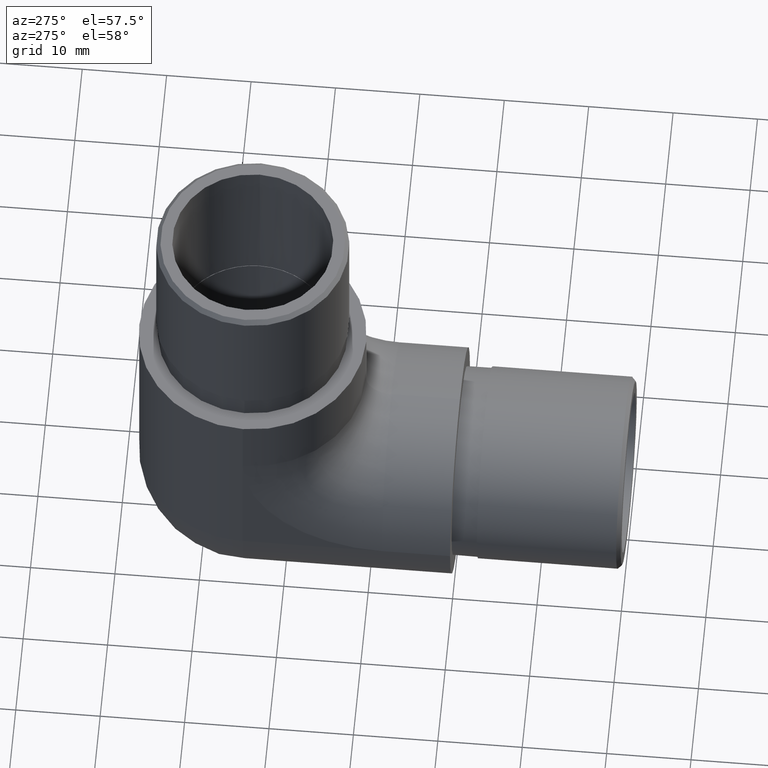
[diagram: clean part render]
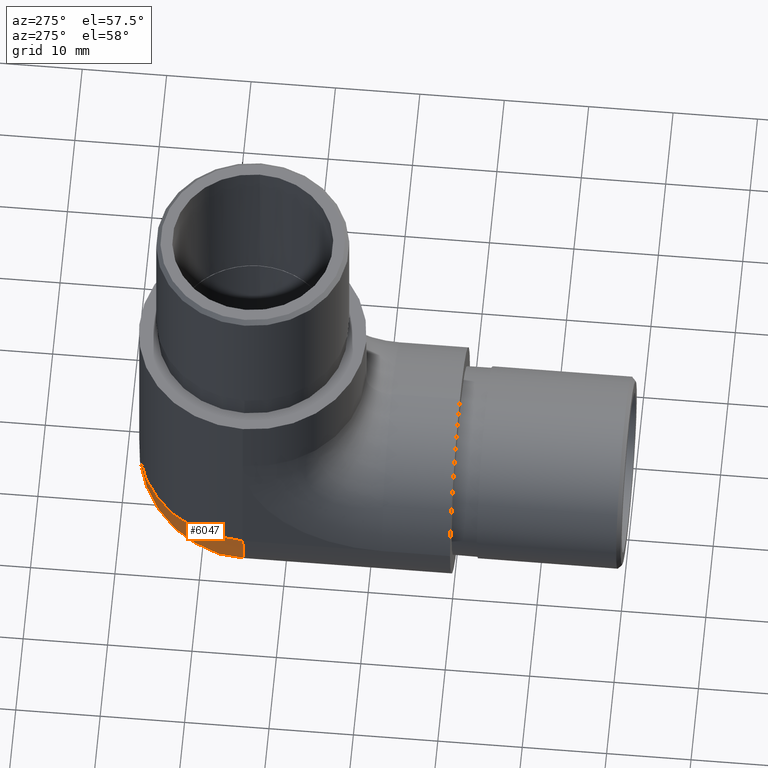
[diagram: same view with one face highlighted and labeled with its STEP entity id]
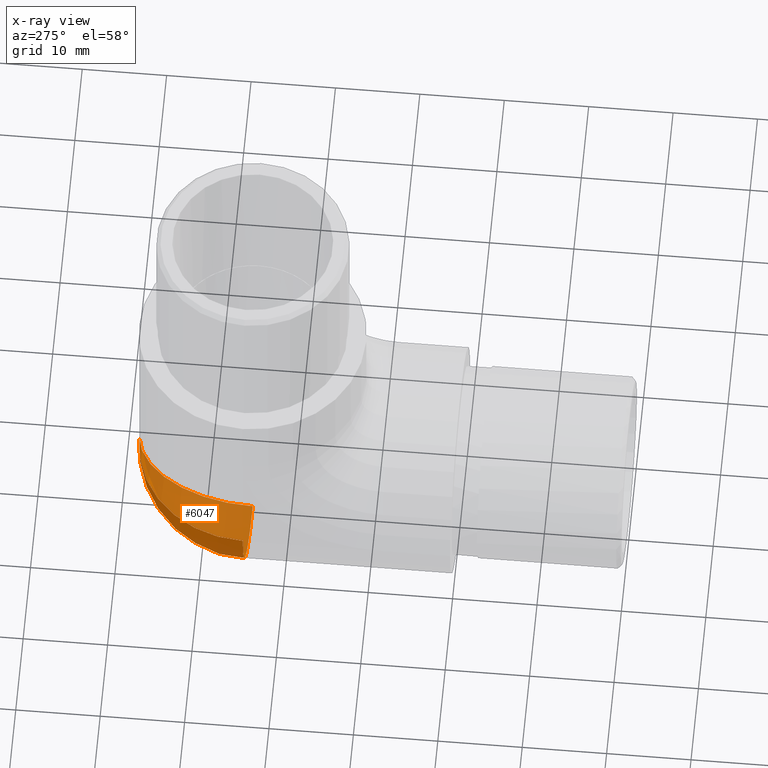
[diagram: x-ray of the same camera — body ghosted, the highlighted face saturated]
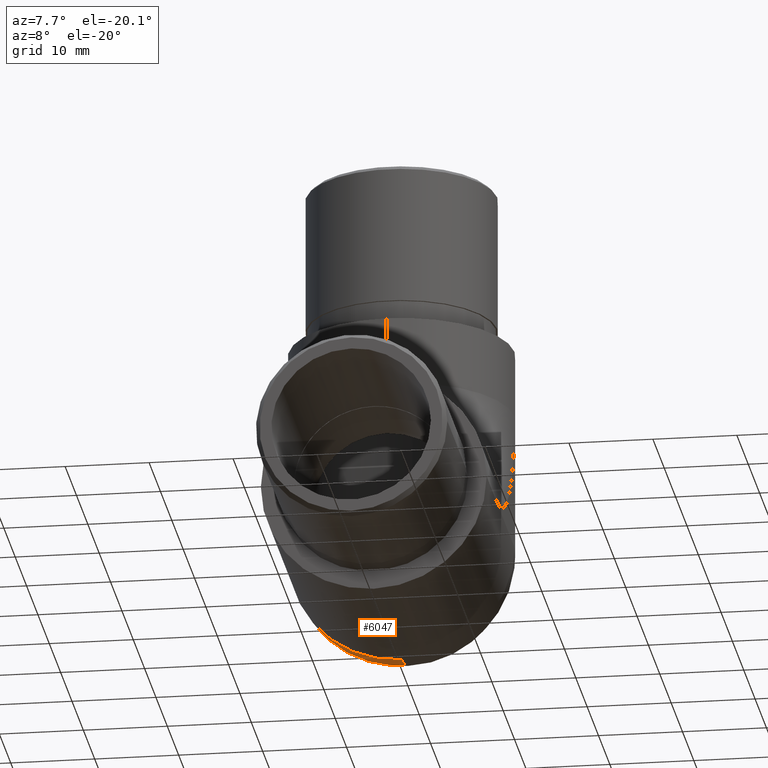
[diagram: same view with one face highlighted and labeled with its STEP entity id]
A machine part, auxiliary view. The second image highlights one B-rep face of the part: STEP entity #6047.
The next image is the same camera in x-ray: the body ghosted, the highlighted face saturated — about 68% of this face is hidden behind the body in this view.
A second angle (auxiliary view) of the same face is appended — the face is thin or edge-on in the first view.
In plain terms, the highlighted spherical surface has radius 13.45 mm.
Its self-contained STEP definition (entity closure, byte-faithful):
#429 = FACE_OUTER_BOUND ( 'NONE', #11488, .T. ) ;
#1720 = ORIENTED_EDGE ( 'NONE', *, *, #11325, .F. ) ;
#1789 = SPHERICAL_SURFACE ( 'NONE', #4301, 13.44999999999999900 ) ;
#2752 = CARTESIAN_POINT ( 'NONE',  ( -1.734723475976806900E-015, 38.00000000000000000, -2.602085213965210600E-015 ) ) ;
#2768 = VERTEX_POINT ( 'NONE', #9618 ) ;
#3212 = CARTESIAN_POINT ( 'NONE',  ( 1.734723475976807100E-015, 24.54999999999999700, -2.602085213965210200E-015 ) ) ;
#3280 = CARTESIAN_POINT ( 'NONE',  ( -13.44999999999999900, 24.54999999999999700, -1.734723475976806500E-015 ) ) ;
#3366 = DIRECTION ( 'NONE',  ( -6.448786156047612000E-017, -3.279704777395519300E-032, -1.000000000000000000 ) ) ;
#3367 = CARTESIAN_POINT ( 'NONE',  ( 1.734723475976807100E-015, 24.54999999999999700, -2.602085213965210200E-015 ) ) ;
#3639 = AXIS2_PLACEMENT_3D ( 'NONE', #5275, #3366, #7256 ) ;
#3953 = VERTEX_POINT ( 'NONE', #3280 ) ;
#4301 = AXIS2_PLACEMENT_3D ( 'NONE', #8466, #8583, #6544 ) ;
#4423 = CIRCLE ( 'NONE', #12473, 13.44999999999999900 ) ;
#5275 = CARTESIAN_POINT ( 'NONE',  ( 1.734723475976807100E-015, 24.54999999999999700, -2.602085213965210200E-015 ) ) ;
#6047 = ADVANCED_FACE ( 'NONE', ( #429 ), #1789, .T. ) ;
#6544 = DIRECTION ( 'NONE',  ( -6.448786156047612000E-017, 0.0000000000000000000, -1.000000000000000000 ) ) ;
#6573 = VERTEX_POINT ( 'NONE', #2752 ) ;
#7001 = EDGE_CURVE ( 'NONE', #3953, #6573, #7976, .T. ) ;
#7256 = DIRECTION ( 'NONE',  ( -1.000000000000000000, 0.0000000000000000000, 6.448786156047612000E-017 ) ) ;
#7345 = ORIENTED_EDGE ( 'NONE', *, *, #7001, .T. ) ;
#7855 = AXIS2_PLACEMENT_3D ( 'NONE', #3367, #8210, #12084 ) ;
#7976 = CIRCLE ( 'NONE', #3639, 13.44999999999999900 ) ;
#8210 = DIRECTION ( 'NONE',  ( 1.000000000000000000, -0.0000000000000000000, 6.448786156047610700E-017 ) ) ;
#8466 = CARTESIAN_POINT ( 'NONE',  ( 1.734723475976807100E-015, 24.54999999999999700, -2.602085213965210200E-015 ) ) ;
#8583 = DIRECTION ( 'NONE',  ( 0.0000000000000000000, 1.000000000000000000, 0.0000000000000000000 ) ) ;
#9618 = CARTESIAN_POINT ( 'NONE',  ( -8.673617379884035500E-016, 24.54999999999999700, -13.45000000000000300 ) ) ;
#10023 = CIRCLE ( 'NONE', #7855, 13.44999999999999900 ) ;
#10026 = DIRECTION ( 'NONE',  ( -0.0000000000000000000, -1.000000000000000000, -0.0000000000000000000 ) ) ;
#10905 = EDGE_CURVE ( 'NONE', #3953, #2768, #4423, .T. ) ;
#11058 = DIRECTION ( 'NONE',  ( 0.0000000000000000000, 0.0000000000000000000, -1.000000000000000000 ) ) ;
#11325 = EDGE_CURVE ( 'NONE', #2768, #6573, #10023, .T. ) ;
#11488 = EDGE_LOOP ( 'NONE', ( #11939, #7345, #1720 ) ) ;
#11939 = ORIENTED_EDGE ( 'NONE', *, *, #10905, .F. ) ;
#12084 = DIRECTION ( 'NONE',  ( 6.448786156047610700E-017, 0.0000000000000000000, -1.000000000000000000 ) ) ;
#12473 = AXIS2_PLACEMENT_3D ( 'NONE', #3212, #10026, #11058 ) ;